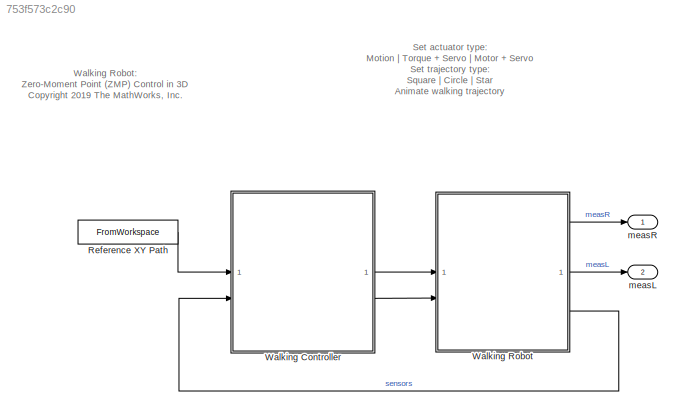
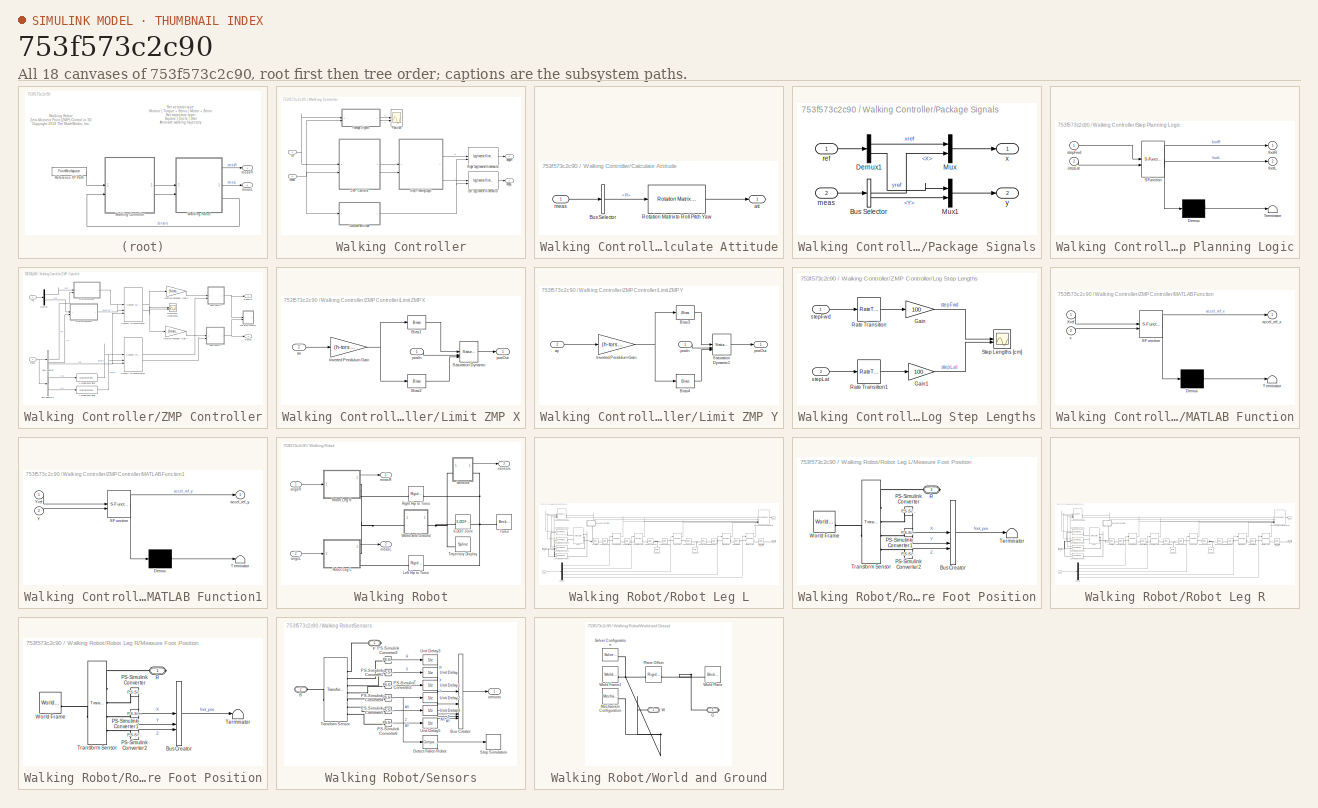
[diagram: thumbnail index - all 18 canvases of the model, root first then tree order]
MODEL slx_753f573c2c90
KIND model
CONFIG AbsTol = auto
CONFIG EnableMultiTasking = on
CONFIG FixedStep = auto
CONFIG MaxStep = auto
CONFIG MinStep = auto
CONFIG PreLoadFcn = robotParameters3D\n
CONFIG RelTol = 1e-2
CONFIG SampleTimeConstraint = Unconstrained
CONFIG SolverName = ode15s
CONFIG StartTime = 0.0
CONFIG StopTime = 70
BLOCK [FromWorkspace] Reference XY Path
  OutputAfterFinalValue = Holding final value
  SampleTime = TsCtrl
  VariableName = [pathT,pathX,pathY]
BLOCK [SubSystem] Walking Controller
BLOCK [SubSystem] Walking Controller/Calculate Attitude
BLOCK [BusSelector] Walking Controller/Calculate Attitude/Bus Selector
  OutputSignals = R
BLOCK [Reference] Walking Controller/Calculate Attitude/Rotation Matrix to Roll Pitch Yaw  REF=walkingRobotUtils/Rotation Matrix to 
Roll Pitch Yaw
  SourceBlock = walkingRobotUtils/Rotation Matrix to \nRoll Pitch Yaw
  SourceType = SubSystem
BLOCK [Outport] Walking Controller/Calculate Attitude/att
  VectorParamsAs1DForOutWhenUnconnected = off
BLOCK [Inport] Walking Controller/Calculate Attitude/meas
BLOCK [Reference] Walking Controller/Left Leg Inverse Kinematics  REF=walkingRobotUtils/Leg Inverse Kinematics
  SourceBlock = walkingRobotUtils/Leg Inverse Kinematics
  SourceType = SubSystem
BLOCK [SubSystem] Walking Controller/Package Signals
BLOCK [BusSelector] Walking Controller/Package Signals/Bus Selector
  OutputSignals = X,Y
BLOCK [Demux] Walking Controller/Package Signals/Demux1
  Outputs = 2
BLOCK [Mux] Walking Controller/Package Signals/Mux
  DisplayOption = bar
  Inputs = 2
BLOCK [Mux] Walking Controller/Package Signals/Mux1
  DisplayOption = bar
  Inputs = 2
BLOCK [Inport] Walking Controller/Package Signals/meas
  Port = 2
BLOCK [Inport] Walking Controller/Package Signals/ref
BLOCK [Outport] Walking Controller/Package Signals/x
  VectorParamsAs1DForOutWhenUnconnected = off
BLOCK [Outport] Walking Controller/Package Signals/y
  Port = 2
  VectorParamsAs1DForOutWhenUnconnected = off
BLOCK [Scope] Walking Controller/Position
  Floating = off
  NumInputPorts = 2
  ScopeSpecificationString = Simulink.scopes.TimeScopeBlockCfg('CurrentConfiguration', extmgr.ConfigurationSet(extmgr.Configuration('Core','General UI',true),extmgr.Configuration('Core','Source UI',true),extmgr.Configuration('Sources','WiredSimulink',true,'DataLoggingVariableName','ScopeData1'),extmgr.Configuration('Visuals','Time Domain',true,'SerializedDisplays',{struct('MinYLimReal','-0.12852','MaxYLimReal','1.15665','YLab...<+2143ch>
BLOCK [Reference] Walking Controller/Right Leg Inverse Kinematics  REF=walkingRobotUtils/Leg Inverse Kinematics
  SourceBlock = walkingRobotUtils/Leg Inverse Kinematics
  SourceType = SubSystem
BLOCK [SubSystem] Walking Controller/Step Planning Logic
  ErrorFcn = Stateflow.Translate.translate
  PermitHierarchicalResolution = ExplicitOnly
  SFBlockType = Chart
  TreatAsAtomicUnit = on
BLOCK [Demux] Walking Controller/Step Planning Logic/ Demux 
  Outputs = 1
BLOCK [S-Function] Walking Controller/Step Planning Logic/ SFunction 
  EnableBusSupport = on
  FunctionName = sf_sfun
  Parameters = Kwalk,h,stepHeight,tWalk
  PortCounts = [2 3]
  SFcnIsStateOwnerBlock = off
  SFunctionDeploymentMode = off
  Tag = Stateflow S-Function 4
BLOCK [Terminator] Walking Controller/Step Planning Logic/ Terminator 
BLOCK [Outport] Walking Controller/Step Planning Logic/footL
  Port = 2
  VectorParamsAs1DForOutWhenUnconnected = off
BLOCK [Outport] Walking Controller/Step Planning Logic/footR
  VectorParamsAs1DForOutWhenUnconnected = off
BLOCK [Inport] Walking Controller/Step Planning Logic/stepFwd
BLOCK [Inport] Walking Controller/Step Planning Logic/stepLat
  Port = 2
BLOCK [SubSystem] Walking Controller/ZMP Controller
BLOCK [BusSelector] Walking Controller/ZMP Controller/Bus Selector
  OutputSignals = X,Y,R
BLOCK [BusSelector] Walking Controller/ZMP Controller/Bus Selector1
  OutputSignals = AX,AY
BLOCK [Reference] Walking Controller/ZMP Controller/Convert to Local Frame  REF=walkingRobotUtils/Convert to Local Frame
  SourceBlock = walkingRobotUtils/Convert to Local Frame
  SourceType = SubSystem
BLOCK [Reference] Walking Controller/ZMP Controller/Convert to Local Frame1  REF=walkingRobotUtils/Convert to Local Frame
  SourceBlock = walkingRobotUtils/Convert to Local Frame
  SourceType = SubSystem
BLOCK [Demux] Walking Controller/ZMP Controller/Demux
  Outputs = 2
BLOCK [Gain] Walking Controller/ZMP Controller/Inverted Pendulum Gain X
  Gain = (h-torso_offset_z)/(g*100)
BLOCK [Gain] Walking Controller/ZMP Controller/Inverted Pendulum Gain Y
  Gain = (h-torso_offset_z)/(g*100)
BLOCK [SubSystem] Walking Controller/ZMP Controller/Limit ZMP X
BLOCK [Bias] Walking Controller/ZMP Controller/Limit ZMP X/Bias1
  Bias = 0.9*(foot_x/2)/100
  SaturateOnIntegerOverflow = off
BLOCK [Bias] Walking Controller/ZMP Controller/Limit ZMP X/Bias2
  Bias = -0.9*(foot_x/2)/100
  SaturateOnIntegerOverflow = off
BLOCK [Gain] Walking Controller/ZMP Controller/Limit ZMP X/Inverted Pendulum Gain
  Gain = (h-torso_offset_z)/(g*100)
BLOCK [Reference] Walking Controller/ZMP Controller/Limit ZMP X/Saturation Dynamic  REF=simulink/Discontinuities/Saturation
Dynamic
  SourceBlock = simulink/Discontinuities/Saturation\nDynamic
  SourceType = Saturation Dynamic
BLOCK [Inport] Walking Controller/ZMP Controller/Limit ZMP X/ax
  Port = 2
BLOCK [Inport] Walking Controller/ZMP Controller/Limit ZMP X/posIn
BLOCK [Outport] Walking Controller/ZMP Controller/Limit ZMP X/posOut
  VectorParamsAs1DForOutWhenUnconnected = off
BLOCK [SubSystem] Walking Controller/ZMP Controller/Limit ZMP Y
BLOCK [Bias] Walking Controller/ZMP Controller/Limit ZMP Y/Bias3
  Bias = 0.9*(foot_y/2)/100
  SaturateOnIntegerOverflow = off
BLOCK [Bias] Walking Controller/ZMP Controller/Limit ZMP Y/Bias4
  Bias = -0.9*(foot_y/2)/100
  SaturateOnIntegerOverflow = off
BLOCK [Gain] Walking Controller/ZMP Controller/Limit ZMP Y/Inverted Pendulum Gain
  Gain = (h-torso_offset_z)/(g*100)
BLOCK [Reference] Walking Controller/ZMP Controller/Limit ZMP Y/Saturation Dynamic1  REF=simulink/Discontinuities/Saturation
Dynamic
  SourceBlock = simulink/Discontinuities/Saturation\nDynamic
  SourceType = Saturation Dynamic
BLOCK [Inport] Walking Controller/ZMP Controller/Limit ZMP Y/ay
  Port = 2
BLOCK [Inport] Walking Controller/ZMP Controller/Limit ZMP Y/posIn
BLOCK [Outport] Walking Controller/ZMP Controller/Limit ZMP Y/posOut
  VectorParamsAs1DForOutWhenUnconnected = off
BLOCK [SubSystem] Walking Controller/ZMP Controller/Log Step Lengths
BLOCK [Gain] Walking Controller/ZMP Controller/Log Step Lengths/Gain
  Gain = 100
BLOCK [Gain] Walking Controller/ZMP Controller/Log Step Lengths/Gain1
  Gain = 100
  NameLocation = top
BLOCK [RateTransition] Walking Controller/ZMP Controller/Log Step Lengths/Rate Transition
  OutPortSampleTime = tWalk
BLOCK [RateTransition] Walking Controller/ZMP Controller/Log Step Lengths/Rate Transition1
  OutPortSampleTime = tWalk
BLOCK [Scope] Walking Controller/ZMP Controller/Log Step Lengths/Step Lengths [cm]
  Floating = off
  NumInputPorts = 2
  ScopeSpecificationString = Simulink.scopes.TimeScopeBlockCfg('CurrentConfiguration', extmgr.ConfigurationSet(extmgr.Configuration('Core','General UI',true),extmgr.Configuration('Core','Source UI',true),extmgr.Configuration('Sources','WiredSimulink',true,'DataLoggingVariableName','ScopeData2'),extmgr.Configuration('Visuals','Time Domain',true,'SerializedDisplays',{struct('MinYLimReal','-0.18147','MaxYLimReal','1.48184','YLab...<+2066ch>
BLOCK [Inport] Walking Controller/ZMP Controller/Log Step Lengths/stepFwd
BLOCK [Inport] Walking Controller/ZMP Controller/Log Step Lengths/stepLat
  Port = 2
BLOCK [SubSystem] Walking Controller/ZMP Controller/MATLAB Function
  ErrorFcn = Stateflow.Translate.translate
  PermitHierarchicalResolution = ExplicitOnly
  SFBlockType = MATLAB Function
  TreatAsAtomicUnit = on
BLOCK [Demux] Walking Controller/ZMP Controller/MATLAB Function/ Demux 
  Outputs = 1
BLOCK [S-Function] Walking Controller/ZMP Controller/MATLAB Function/ SFunction 
  EnableBusSupport = on
  FunctionName = sf_sfun
  PortCounts = [2 2]
  SFcnIsStateOwnerBlock = off
  SFunctionDeploymentMode = off
  Tag = Stateflow S-Function 2
BLOCK [Terminator] Walking Controller/ZMP Controller/MATLAB Function/ Terminator 
BLOCK [Inport] Walking Controller/ZMP Controller/MATLAB Function/Xref
BLOCK [Outport] Walking Controller/ZMP Controller/MATLAB Function/accel_ref_x
BLOCK [Inport] Walking Controller/ZMP Controller/MATLAB Function/x
  Port = 2
BLOCK [SubSystem] Walking Controller/ZMP Controller/MATLAB Function1
  ErrorFcn = Stateflow.Translate.translate
  PermitHierarchicalResolution = ExplicitOnly
  SFBlockType = MATLAB Function
  TreatAsAtomicUnit = on
BLOCK [Demux] Walking Controller/ZMP Controller/MATLAB Function1/ Demux 
  Outputs = 1
BLOCK [S-Function] Walking Controller/ZMP Controller/MATLAB Function1/ SFunction 
  EnableBusSupport = on
  FunctionName = sf_sfun
  PortCounts = [2 2]
  SFcnIsStateOwnerBlock = off
  SFunctionDeploymentMode = off
  Tag = Stateflow S-Function 1
BLOCK [Terminator] Walking Controller/ZMP Controller/MATLAB Function1/ Terminator 
BLOCK [Inport] Walking Controller/ZMP Controller/MATLAB Function1/Yref
BLOCK [Outport] Walking Controller/ZMP Controller/MATLAB Function1/accel_ref_y
BLOCK [Inport] Walking Controller/ZMP Controller/MATLAB Function1/y
  Port = 2
BLOCK [Scope] Walking Controller/ZMP Controller/Reference Accelerations
  Floating = off
  NumInputPorts = 2
  ScopeSpecificationString = Simulink.scopes.TimeScopeBlockCfg('CurrentConfiguration', extmgr.ConfigurationSet(extmgr.Configuration('Core','General UI',true),extmgr.Configuration('Core','Source UI',true),extmgr.Configuration('Sources','WiredSimulink',true,'DataLoggingVariableName','ScopeData1'),extmgr.Configuration('Visuals','Time Domain',true,'SerializedDisplays',{struct('MinYLimReal','-0.11241','MaxYLimReal','0.86744','YLab...<+2100ch>
BLOCK [DiscreteTransferFcn] Walking Controller/ZMP Controller/X Acceleration Filter
  Denominator = [1 -0.9753]
  InputPortMap = u0
  Numerator = [-1*0.02469]
BLOCK [DiscreteTransferFcn] Walking Controller/ZMP Controller/Y Acceleration Filter
  Denominator = [1 -0.9753]
  InputPortMap = u0
  Numerator = [-1*0.02469]
BLOCK [Inport] Walking Controller/ZMP Controller/meas 
  Port = 2
BLOCK [Inport] Walking Controller/ZMP Controller/ref
BLOCK [Outport] Walking Controller/ZMP Controller/stepFwd
  VectorParamsAs1DForOutWhenUnconnected = off
BLOCK [Outport] Walking Controller/ZMP Controller/stepLat
  Port = 2
  VectorParamsAs1DForOutWhenUnconnected = off
BLOCK [Outport] Walking Controller/angsL
  Port = 2
  VectorParamsAs1DForOutWhenUnconnected = off
BLOCK [Outport] Walking Controller/angsR
  VectorParamsAs1DForOutWhenUnconnected = off
BLOCK [Inport] Walking Controller/meas
  Port = 2
BLOCK [Inport] Walking Controller/ref
BLOCK [SubSystem] Walking Robot
BLOCK [Reference] Walking Robot/6-DOF Joint  REF=sm_lib/Joints/6-DOF Joint
  SourceBlock = sm_lib/Joints/6-DOF Joint
  SourceType = 6-DOF Joint
BLOCK [Reference] Walking Robot/Left Hip to Torso  REF=sm_lib/Frames and
Transforms/Rigid
Transform
  SourceBlock = sm_lib/Frames and\nTransforms/Rigid\nTransform
  SourceType = Rigid\nTransform
BLOCK [Reference] Walking Robot/Right Hip to Torso  REF=sm_lib/Frames and
Transforms/Rigid
Transform
  SourceBlock = sm_lib/Frames and\nTransforms/Rigid\nTransform
  SourceType = Rigid\nTransform
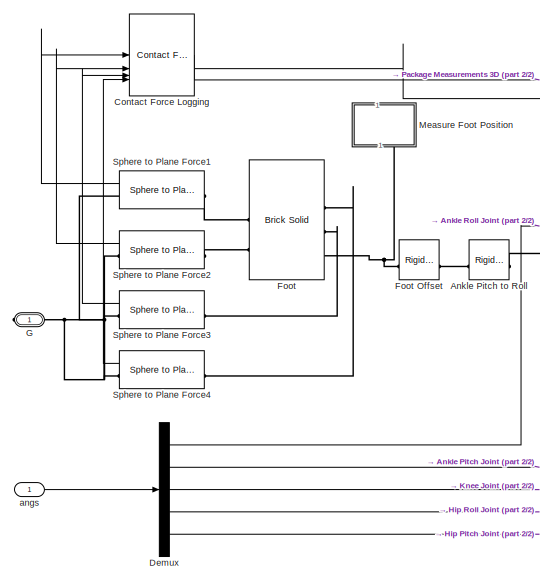
[diagram: Walking Robot/Robot Leg L - part 1/2, left side, full height]
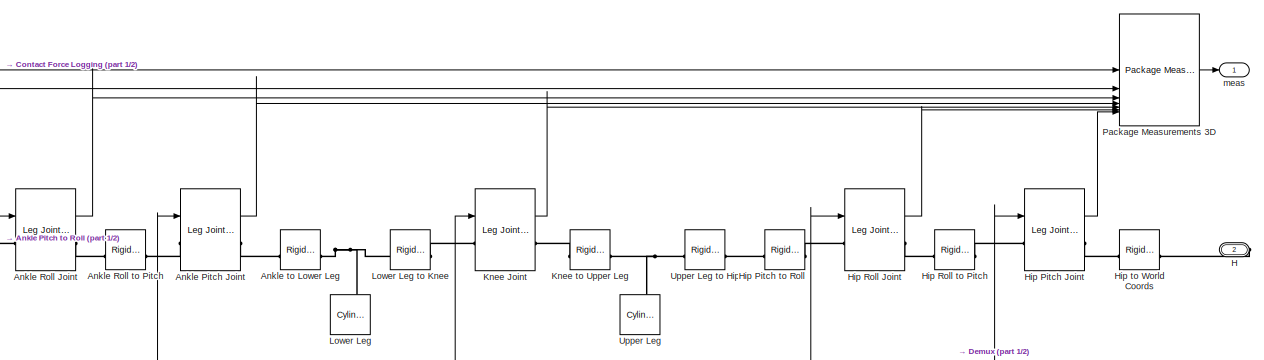
[diagram: Walking Robot/Robot Leg L - part 2/2, central region]
BLOCK [SubSystem] Walking Robot/Robot Leg L
BLOCK [Reference] Walking Robot/Robot Leg L/Ankle Pitch Joint  REF=walkingRobotUtils/Leg Joint Actuator
  SourceBlock = walkingRobotUtils/Leg Joint Actuator
  SourceType = Leg Joint Actuator
BLOCK [Reference] Walking Robot/Robot Leg L/Ankle Pitch to Roll  REF=sm_lib/Frames and
Transforms/Rigid
Transform
  SourceBlock = sm_lib/Frames and\nTransforms/Rigid\nTransform
  SourceType = Rigid\nTransform
BLOCK [Reference] Walking Robot/Robot Leg L/Ankle Roll Joint  REF=walkingRobotUtils/Leg Joint Actuator
  SourceBlock = walkingRobotUtils/Leg Joint Actuator
  SourceType = Leg Joint Actuator
BLOCK [Reference] Walking Robot/Robot Leg L/Ankle Roll to Pitch  REF=sm_lib/Frames and
Transforms/Rigid
Transform
  SourceBlock = sm_lib/Frames and\nTransforms/Rigid\nTransform
  SourceType = Rigid\nTransform
BLOCK [Reference] Walking Robot/Robot Leg L/Ankle to Lower Leg  REF=sm_lib/Frames and
Transforms/Rigid
Transform
  SourceBlock = sm_lib/Frames and\nTransforms/Rigid\nTransform
  SourceType = Rigid\nTransform
BLOCK [Reference] Walking Robot/Robot Leg L/Contact Force Logging  REF=walkingRobotUtils/Contact Force Logging
  SourceBlock = walkingRobotUtils/Contact Force Logging
  SourceType = SubSystem
BLOCK [Demux] Walking Robot/Robot Leg L/Demux
  Outputs = 5
BLOCK [Reference] Walking Robot/Robot Leg L/Foot  REF=sm_lib/Body Elements/Brick Solid
  SourceBlock = sm_lib/Body Elements/Brick Solid
  SourceType = Brick Solid
BLOCK [Reference] Walking Robot/Robot Leg L/Foot Offset  REF=sm_lib/Frames and
Transforms/Rigid
Transform
  SourceBlock = sm_lib/Frames and\nTransforms/Rigid\nTransform
  SourceType = Rigid\nTransform
BLOCK [PMIOPort] Walking Robot/Robot Leg L/G
  Side = Right
BLOCK [PMIOPort] Walking Robot/Robot Leg L/H
  Port = 2
  Side = Right
BLOCK [Reference] Walking Robot/Robot Leg L/Hip Pitch Joint  REF=walkingRobotUtils/Leg Joint Actuator
  SourceBlock = walkingRobotUtils/Leg Joint Actuator
  SourceType = Leg Joint Actuator
BLOCK [Reference] Walking Robot/Robot Leg L/Hip Pitch to Roll  REF=sm_lib/Frames and
Transforms/Rigid
Transform
  SourceBlock = sm_lib/Frames and\nTransforms/Rigid\nTransform
  SourceType = Rigid\nTransform
BLOCK [Reference] Walking Robot/Robot Leg L/Hip Roll Joint  REF=walkingRobotUtils/Leg Joint Actuator
  SourceBlock = walkingRobotUtils/Leg Joint Actuator
  SourceType = Leg Joint Actuator
BLOCK [Reference] Walking Robot/Robot Leg L/Hip Roll to Pitch  REF=sm_lib/Frames and
Transforms/Rigid
Transform
  SourceBlock = sm_lib/Frames and\nTransforms/Rigid\nTransform
  SourceType = Rigid\nTransform
BLOCK [Reference] Walking Robot/Robot Leg L/Hip to World Coords  REF=sm_lib/Frames and
Transforms/Rigid
Transform
  SourceBlock = sm_lib/Frames and\nTransforms/Rigid\nTransform
  SourceType = Rigid\nTransform
BLOCK [Reference] Walking Robot/Robot Leg L/Knee Joint  REF=walkingRobotUtils/Leg Joint Actuator
  SourceBlock = walkingRobotUtils/Leg Joint Actuator
  SourceType = Leg Joint Actuator
BLOCK [Reference] Walking Robot/Robot Leg L/Knee to Upper Leg  REF=sm_lib/Frames and
Transforms/Rigid
Transform
  SourceBlock = sm_lib/Frames and\nTransforms/Rigid\nTransform
  SourceType = Rigid\nTransform
BLOCK [Reference] Walking Robot/Robot Leg L/Lower Leg  REF=sm_lib/Body Elements/Cylindrical Solid
  NameLocation = right
  SourceBlock = sm_lib/Body Elements/Cylindrical Solid
  SourceType = Cylindrical Solid
BLOCK [Reference] Walking Robot/Robot Leg L/Lower Leg to Knee  REF=sm_lib/Frames and
Transforms/Rigid
Transform
  SourceBlock = sm_lib/Frames and\nTransforms/Rigid\nTransform
  SourceType = Rigid\nTransform
BLOCK [SubSystem] Walking Robot/Robot Leg L/Measure Foot Position
  NameLocation = right
BLOCK [BusCreator] Walking Robot/Robot Leg L/Measure Foot Position/Bus Creator
  DisplayOption = bar
  InheritFromInputs = on
  Inputs = 3
BLOCK [Reference] Walking Robot/Robot Leg L/Measure Foot Position/PS-Simulink Converter  REF=nesl_utility/PS-Simulink
Converter
  SourceBlock = nesl_utility/PS-Simulink\nConverter
  SourceType = PS-Simulink\nConverter
BLOCK [Reference] Walking Robot/Robot Leg L/Measure Foot Position/PS-Simulink Converter1  REF=nesl_utility/PS-Simulink
Converter
  SourceBlock = nesl_utility/PS-Simulink\nConverter
  SourceType = PS-Simulink\nConverter
BLOCK [Reference] Walking Robot/Robot Leg L/Measure Foot Position/PS-Simulink Converter2  REF=nesl_utility/PS-Simulink
Converter
  SourceBlock = nesl_utility/PS-Simulink\nConverter
  SourceType = PS-Simulink\nConverter
BLOCK [PMIOPort] Walking Robot/Robot Leg L/Measure Foot Position/R
  Side = Right
BLOCK [Terminator] Walking Robot/Robot Leg L/Measure Foot Position/Terminator
BLOCK [Reference] Walking Robot/Robot Leg L/Measure Foot Position/Transform Sensor  REF=sm_lib/Frames and
Transforms/Transform
Sensor
  NameLocation = top
  SourceBlock = sm_lib/Frames and\nTransforms/Transform\nSensor
  SourceType = Transform\nSensor
BLOCK [Reference] Walking Robot/Robot Leg L/Measure Foot Position/World Frame  REF=sm_lib/Frames and
Transforms/World Frame
  SourceBlock = sm_lib/Frames and\nTransforms/World Frame
  SourceType = World Frame
BLOCK [Reference] Walking Robot/Robot Leg L/Package Measurements 3D  REF=walkingRobotUtils/Package
Measurements 3D
  SourceBlock = walkingRobotUtils/Package\nMeasurements 3D
  SourceType = SubSystem
BLOCK [Reference] Walking Robot/Robot Leg L/Sphere to Plane Force1  REF=Contact_Forces_Lib/3D/Sphere to Plane Force
  SourceBlock = Contact_Forces_Lib/3D/Sphere to Plane Force
  SourceProductName = Simscape Multibody Contact Forces Library
  SourceType = Sphere to Plane Force
BLOCK [Reference] Walking Robot/Robot Leg L/Sphere to Plane Force2  REF=Contact_Forces_Lib/3D/Sphere to Plane Force
  SourceBlock = Contact_Forces_Lib/3D/Sphere to Plane Force
  SourceProductName = Simscape Multibody Contact Forces Library
  SourceType = Sphere to Plane Force
BLOCK [Reference] Walking Robot/Robot Leg L/Sphere to Plane Force3  REF=Contact_Forces_Lib/3D/Sphere to Plane Force
  SourceBlock = Contact_Forces_Lib/3D/Sphere to Plane Force
  SourceProductName = Simscape Multibody Contact Forces Library
  SourceType = Sphere to Plane Force
BLOCK [Reference] Walking Robot/Robot Leg L/Sphere to Plane Force4  REF=Contact_Forces_Lib/3D/Sphere to Plane Force
  SourceBlock = Contact_Forces_Lib/3D/Sphere to Plane Force
  SourceProductName = Simscape Multibody Contact Forces Library
  SourceType = Sphere to Plane Force
BLOCK [Reference] Walking Robot/Robot Leg L/Upper Leg  REF=sm_lib/Body Elements/Cylindrical Solid
  NameLocation = right
  SourceBlock = sm_lib/Body Elements/Cylindrical Solid
  SourceType = Cylindrical Solid
BLOCK [Reference] Walking Robot/Robot Leg L/Upper Leg to Hip  REF=sm_lib/Frames and
Transforms/Rigid
Transform
  SourceBlock = sm_lib/Frames and\nTransforms/Rigid\nTransform
  SourceType = Rigid\nTransform
BLOCK [Inport] Walking Robot/Robot Leg L/angs
BLOCK [Outport] Walking Robot/Robot Leg L/meas
  VectorParamsAs1DForOutWhenUnconnected = off
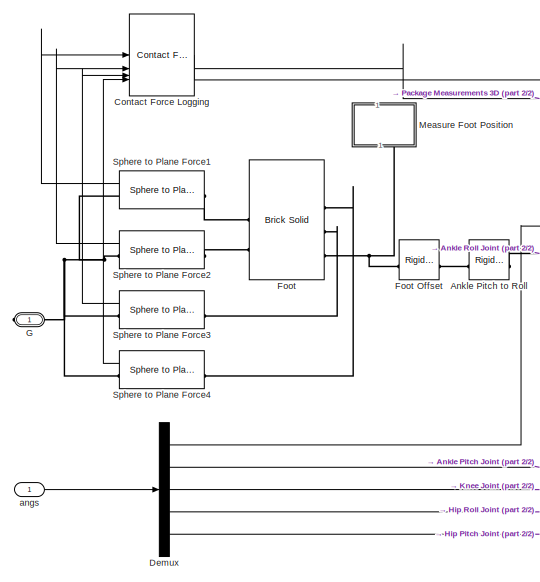
[diagram: Walking Robot/Robot Leg R - part 1/2, left side, full height]
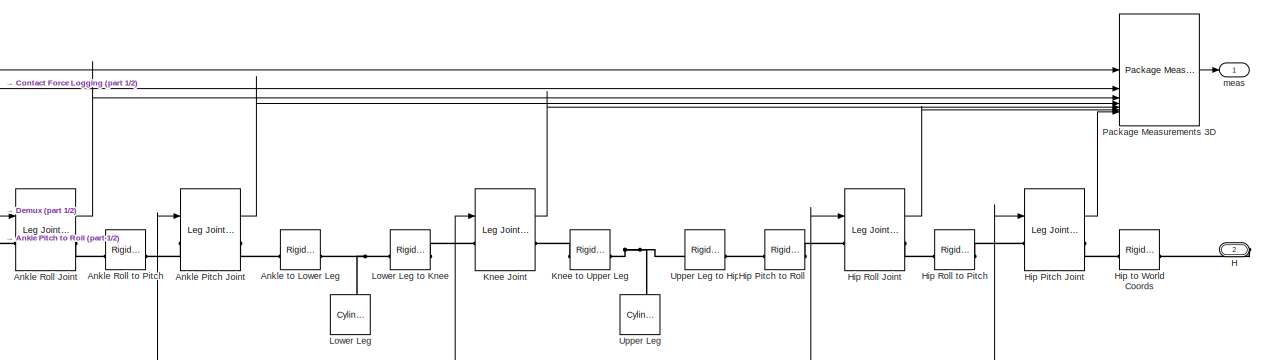
[diagram: Walking Robot/Robot Leg R - part 2/2, central region]
BLOCK [SubSystem] Walking Robot/Robot Leg R
BLOCK [Reference] Walking Robot/Robot Leg R/Ankle Pitch Joint  REF=walkingRobotUtils/Leg Joint Actuator
  SourceBlock = walkingRobotUtils/Leg Joint Actuator
  SourceType = Leg Joint Actuator
BLOCK [Reference] Walking Robot/Robot Leg R/Ankle Pitch to Roll  REF=sm_lib/Frames and
Transforms/Rigid
Transform
  SourceBlock = sm_lib/Frames and\nTransforms/Rigid\nTransform
  SourceType = Rigid\nTransform
BLOCK [Reference] Walking Robot/Robot Leg R/Ankle Roll Joint  REF=walkingRobotUtils/Leg Joint Actuator
  SourceBlock = walkingRobotUtils/Leg Joint Actuator
  SourceType = Leg Joint Actuator
BLOCK [Reference] Walking Robot/Robot Leg R/Ankle Roll to Pitch  REF=sm_lib/Frames and
Transforms/Rigid
Transform
  SourceBlock = sm_lib/Frames and\nTransforms/Rigid\nTransform
  SourceType = Rigid\nTransform
BLOCK [Reference] Walking Robot/Robot Leg R/Ankle to Lower Leg  REF=sm_lib/Frames and
Transforms/Rigid
Transform
  SourceBlock = sm_lib/Frames and\nTransforms/Rigid\nTransform
  SourceType = Rigid\nTransform
BLOCK [Reference] Walking Robot/Robot Leg R/Contact Force Logging  REF=walkingRobotUtils/Contact Force Logging
  SourceBlock = walkingRobotUtils/Contact Force Logging
  SourceType = SubSystem
BLOCK [Demux] Walking Robot/Robot Leg R/Demux
  Outputs = 5
BLOCK [Reference] Walking Robot/Robot Leg R/Foot  REF=sm_lib/Body Elements/Brick Solid
  SourceBlock = sm_lib/Body Elements/Brick Solid
  SourceType = Brick Solid
BLOCK [Reference] Walking Robot/Robot Leg R/Foot Offset  REF=sm_lib/Frames and
Transforms/Rigid
Transform
  SourceBlock = sm_lib/Frames and\nTransforms/Rigid\nTransform
  SourceType = Rigid\nTransform
BLOCK [PMIOPort] Walking Robot/Robot Leg R/G
  Side = Right
BLOCK [PMIOPort] Walking Robot/Robot Leg R/H
  Port = 2
  Side = Right
BLOCK [Reference] Walking Robot/Robot Leg R/Hip Pitch Joint  REF=walkingRobotUtils/Leg Joint Actuator
  SourceBlock = walkingRobotUtils/Leg Joint Actuator
  SourceType = Leg Joint Actuator
BLOCK [Reference] Walking Robot/Robot Leg R/Hip Pitch to Roll  REF=sm_lib/Frames and
Transforms/Rigid
Transform
  SourceBlock = sm_lib/Frames and\nTransforms/Rigid\nTransform
  SourceType = Rigid\nTransform
BLOCK [Reference] Walking Robot/Robot Leg R/Hip Roll Joint  REF=walkingRobotUtils/Leg Joint Actuator
  SourceBlock = walkingRobotUtils/Leg Joint Actuator
  SourceType = Leg Joint Actuator
BLOCK [Reference] Walking Robot/Robot Leg R/Hip Roll to Pitch  REF=sm_lib/Frames and
Transforms/Rigid
Transform
  SourceBlock = sm_lib/Frames and\nTransforms/Rigid\nTransform
  SourceType = Rigid\nTransform
BLOCK [Reference] Walking Robot/Robot Leg R/Hip to World Coords  REF=sm_lib/Frames and
Transforms/Rigid
Transform
  SourceBlock = sm_lib/Frames and\nTransforms/Rigid\nTransform
  SourceType = Rigid\nTransform
BLOCK [Reference] Walking Robot/Robot Leg R/Knee Joint  REF=walkingRobotUtils/Leg Joint Actuator
  SourceBlock = walkingRobotUtils/Leg Joint Actuator
  SourceType = Leg Joint Actuator
BLOCK [Reference] Walking Robot/Robot Leg R/Knee to Upper Leg  REF=sm_lib/Frames and
Transforms/Rigid
Transform
  SourceBlock = sm_lib/Frames and\nTransforms/Rigid\nTransform
  SourceType = Rigid\nTransform
BLOCK [Reference] Walking Robot/Robot Leg R/Lower Leg  REF=sm_lib/Body Elements/Cylindrical Solid
  NameLocation = right
  SourceBlock = sm_lib/Body Elements/Cylindrical Solid
  SourceType = Cylindrical Solid
BLOCK [Reference] Walking Robot/Robot Leg R/Lower Leg to Knee  REF=sm_lib/Frames and
Transforms/Rigid
Transform
  SourceBlock = sm_lib/Frames and\nTransforms/Rigid\nTransform
  SourceType = Rigid\nTransform
BLOCK [SubSystem] Walking Robot/Robot Leg R/Measure Foot Position
  NameLocation = right
BLOCK [BusCreator] Walking Robot/Robot Leg R/Measure Foot Position/Bus Creator
  DisplayOption = bar
  InheritFromInputs = on
  Inputs = 3
BLOCK [Reference] Walking Robot/Robot Leg R/Measure Foot Position/PS-Simulink Converter  REF=nesl_utility/PS-Simulink
Converter
  SourceBlock = nesl_utility/PS-Simulink\nConverter
  SourceType = PS-Simulink\nConverter
BLOCK [Reference] Walking Robot/Robot Leg R/Measure Foot Position/PS-Simulink Converter1  REF=nesl_utility/PS-Simulink
Converter
  SourceBlock = nesl_utility/PS-Simulink\nConverter
  SourceType = PS-Simulink\nConverter
BLOCK [Reference] Walking Robot/Robot Leg R/Measure Foot Position/PS-Simulink Converter2  REF=nesl_utility/PS-Simulink
Converter
  SourceBlock = nesl_utility/PS-Simulink\nConverter
  SourceType = PS-Simulink\nConverter
BLOCK [PMIOPort] Walking Robot/Robot Leg R/Measure Foot Position/R
  Side = Right
BLOCK [Terminator] Walking Robot/Robot Leg R/Measure Foot Position/Terminator
BLOCK [Reference] Walking Robot/Robot Leg R/Measure Foot Position/Transform Sensor  REF=sm_lib/Frames and
Transforms/Transform
Sensor
  NameLocation = top
  SourceBlock = sm_lib/Frames and\nTransforms/Transform\nSensor
  SourceType = Transform\nSensor
BLOCK [Reference] Walking Robot/Robot Leg R/Measure Foot Position/World Frame  REF=sm_lib/Frames and
Transforms/World Frame
  SourceBlock = sm_lib/Frames and\nTransforms/World Frame
  SourceType = World Frame
BLOCK [Reference] Walking Robot/Robot Leg R/Package Measurements 3D  REF=walkingRobotUtils/Package
Measurements 3D
  SourceBlock = walkingRobotUtils/Package\nMeasurements 3D
  SourceType = SubSystem
BLOCK [Reference] Walking Robot/Robot Leg R/Sphere to Plane Force1  REF=Contact_Forces_Lib/3D/Sphere to Plane Force
  SourceBlock = Contact_Forces_Lib/3D/Sphere to Plane Force
  SourceProductName = Simscape Multibody Contact Forces Library
  SourceType = Sphere to Plane Force
BLOCK [Reference] Walking Robot/Robot Leg R/Sphere to Plane Force2  REF=Contact_Forces_Lib/3D/Sphere to Plane Force
  SourceBlock = Contact_Forces_Lib/3D/Sphere to Plane Force
  SourceProductName = Simscape Multibody Contact Forces Library
  SourceType = Sphere to Plane Force
BLOCK [Reference] Walking Robot/Robot Leg R/Sphere to Plane Force3  REF=Contact_Forces_Lib/3D/Sphere to Plane Force
  SourceBlock = Contact_Forces_Lib/3D/Sphere to Plane Force
  SourceProductName = Simscape Multibody Contact Forces Library
  SourceType = Sphere to Plane Force
BLOCK [Reference] Walking Robot/Robot Leg R/Sphere to Plane Force4  REF=Contact_Forces_Lib/3D/Sphere to Plane Force
  SourceBlock = Contact_Forces_Lib/3D/Sphere to Plane Force
  SourceProductName = Simscape Multibody Contact Forces Library
  SourceType = Sphere to Plane Force
BLOCK [Reference] Walking Robot/Robot Leg R/Upper Leg  REF=sm_lib/Body Elements/Cylindrical Solid
  NameLocation = right
  SourceBlock = sm_lib/Body Elements/Cylindrical Solid
  SourceType = Cylindrical Solid
BLOCK [Reference] Walking Robot/Robot Leg R/Upper Leg to Hip  REF=sm_lib/Frames and
Transforms/Rigid
Transform
  SourceBlock = sm_lib/Frames and\nTransforms/Rigid\nTransform
  SourceType = Rigid\nTransform
BLOCK [Inport] Walking Robot/Robot Leg R/angs
BLOCK [Outport] Walking Robot/Robot Leg R/meas
  VectorParamsAs1DForOutWhenUnconnected = off
BLOCK [SubSystem] Walking Robot/Sensors
BLOCK [PMIOPort] Walking Robot/Sensors/B
  Port = 2
  Side = Left
BLOCK [BusCreator] Walking Robot/Sensors/Bus Creator
  DisplayOption = bar
  InheritFromInputs = on
  Inputs = 6
BLOCK [Reference] Walking Robot/Sensors/Detect Fallen Robot  REF=simulink/Logic and Bit
Operations/Compare
To Constant
  SourceBlock = simulink/Logic and Bit\nOperations/Compare\nTo Constant
  SourceType = Compare To Constant
BLOCK [PMIOPort] Walking Robot/Sensors/F
  Side = Right
BLOCK [Reference] Walking Robot/Sensors/PS-Simulink Converter1  REF=nesl_utility/PS-Simulink
Converter
  SourceBlock = nesl_utility/PS-Simulink\nConverter
  SourceType = PS-Simulink\nConverter
BLOCK [Reference] Walking Robot/Sensors/PS-Simulink Converter2  REF=nesl_utility/PS-Simulink
Converter
  SourceBlock = nesl_utility/PS-Simulink\nConverter
  SourceType = PS-Simulink\nConverter
BLOCK [Reference] Walking Robot/Sensors/PS-Simulink Converter3  REF=nesl_utility/PS-Simulink
Converter
  SourceBlock = nesl_utility/PS-Simulink\nConverter
  SourceType = PS-Simulink\nConverter
BLOCK [Reference] Walking Robot/Sensors/PS-Simulink Converter4  REF=nesl_utility/PS-Simulink
Converter
  SourceBlock = nesl_utility/PS-Simulink\nConverter
  SourceType = PS-Simulink\nConverter
BLOCK [Reference] Walking Robot/Sensors/PS-Simulink Converter5  REF=nesl_utility/PS-Simulink
Converter
  SourceBlock = nesl_utility/PS-Simulink\nConverter
  SourceType = PS-Simulink\nConverter
BLOCK [Reference] Walking Robot/Sensors/PS-Simulink Converter6  REF=nesl_utility/PS-Simulink
Converter
  SourceBlock = nesl_utility/PS-Simulink\nConverter
  SourceType = PS-Simulink\nConverter
BLOCK [Stop] Walking Robot/Sensors/Stop Simulation
BLOCK [Reference] Walking Robot/Sensors/Transform Sensor  REF=sm_lib/Frames and
Transforms/Transform
Sensor
  SourceBlock = sm_lib/Frames and\nTransforms/Transform\nSensor
  SourceType = Transform\nSensor
BLOCK [UnitDelay] Walking Robot/Sensors/Unit Delay
  HasFrameUpgradeWarning = on
  SampleTime = -1
BLOCK [UnitDelay] Walking Robot/Sensors/Unit Delay1
  HasFrameUpgradeWarning = on
  SampleTime = -1
BLOCK [UnitDelay] Walking Robot/Sensors/Unit Delay2
  HasFrameUpgradeWarning = on
  InitialCondition = init_height/100
  SampleTime = -1
BLOCK [UnitDelay] Walking Robot/Sensors/Unit Delay3
  HasFrameUpgradeWarning = on
  InitialCondition = eye(3)
  SampleTime = -1
BLOCK [UnitDelay] Walking Robot/Sensors/Unit Delay4
  HasFrameUpgradeWarning = on
  SampleTime = -1
BLOCK [UnitDelay] Walking Robot/Sensors/Unit Delay5
  HasFrameUpgradeWarning = on
  SampleTime = -1
BLOCK [Outport] Walking Robot/Sensors/sensors
  VectorParamsAs1DForOutWhenUnconnected = off
BLOCK [Reference] Walking Robot/Torso  REF=sm_lib/Body Elements/Brick Solid
  SourceBlock = sm_lib/Body Elements/Brick Solid
  SourceType = Brick Solid
BLOCK [Reference] Walking Robot/Trajectory Display  REF=sm_lib/Curves and Surfaces/Spline
  SourceBlock = sm_lib/Curves and Surfaces/Spline
  SourceType = Spline
BLOCK [SubSystem] Walking Robot/World and Ground
BLOCK [PMIOPort] Walking Robot/World and Ground/G
  Port = 2
  Side = Right
BLOCK [Reference] Walking Robot/World and Ground/Mechanism Configuration  REF=sm_lib/Utilities/Mechanism
Configuration
  SourceBlock = sm_lib/Utilities/Mechanism\nConfiguration
  SourceType = Mechanism\nConfiguration
BLOCK [Reference] Walking Robot/World and Ground/Plane Offset  REF=sm_lib/Frames and
Transforms/Rigid
Transform
  SourceBlock = sm_lib/Frames and\nTransforms/Rigid\nTransform
  SourceType = Rigid\nTransform
BLOCK [Reference] Walking Robot/World and Ground/Solver Configuration  REF=nesl_utility/Solver
Configuration
  SourceBlock = nesl_utility/Solver\nConfiguration
  SourceType = Solver\nConfiguration
BLOCK [PMIOPort] Walking Robot/World and Ground/W
  Side = Left
BLOCK [Reference] Walking Robot/World and Ground/World Frame1  REF=sm_lib/Frames and
Transforms/World Frame
  SourceBlock = sm_lib/Frames and\nTransforms/World Frame
  SourceType = World Frame
BLOCK [Reference] Walking Robot/World and Ground/World Plane  REF=sm_lib/Body Elements/Brick Solid
  SourceBlock = sm_lib/Body Elements/Brick Solid
  SourceType = Brick Solid
BLOCK [Inport] Walking Robot/angsL
  Port = 2
BLOCK [Inport] Walking Robot/angsR
BLOCK [Outport] Walking Robot/measL
  Port = 2
  VectorParamsAs1DForOutWhenUnconnected = off
BLOCK [Outport] Walking Robot/measR
  VectorParamsAs1DForOutWhenUnconnected = off
BLOCK [Outport] Walking Robot/sensors
  Port = 3
  VectorParamsAs1DForOutWhenUnconnected = off
BLOCK [Outport] measL
  Port = 2
  VectorParamsAs1DForOutWhenUnconnected = off
BLOCK [Outport] measR
  VectorParamsAs1DForOutWhenUnconnected = off
ANNOTATION (root): Set actuator type: Motion | Torque + Servo | Motor + Servo Set trajectory type: Square | Circle | Star Animate walking trajectory
ANNOTATION (root): Walking Robot: Zero-Moment Point (ZMP) Control in 3D <copyright redacted>
LINE Reference XY Path:1 -> Walking Controller:1
LINE Walking Controller/Calculate Attitude/Bus Selector:1 -> Walking Controller/Calculate Attitude/Rotation Matrix to Roll Pitch Yaw:1
LINE Walking Controller/Calculate Attitude/Rotation Matrix to Roll Pitch Yaw:1 -> Walking Controller/Calculate Attitude/att:1
LINE Walking Controller/Calculate Attitude/meas:1 -> Walking Controller/Calculate Attitude/Bus Selector:1
NET Walking Controller/Calculate Attitude:1 -> Walking Controller/Left Leg Inverse Kinematics:2, Walking Controller/Right Leg Inverse Kinematics:2
LINE Walking Controller/Left Leg Inverse Kinematics:1 -> Walking Controller/angsL:1
LINE Walking Controller/Package Signals/Bus Selector:1 -> Walking Controller/Package Signals/Mux:2
LINE Walking Controller/Package Signals/Bus Selector:2 -> Walking Controller/Package Signals/Mux1:2
LINE Walking Controller/Package Signals/Demux1:1 -> Walking Controller/Package Signals/Mux:1
LINE Walking Controller/Package Signals/Demux1:2 -> Walking Controller/Package Signals/Mux1:1
LINE Walking Controller/Package Signals/Mux1:1 -> Walking Controller/Package Signals/y:1
LINE Walking Controller/Package Signals/Mux:1 -> Walking Controller/Package Signals/x:1
LINE Walking Controller/Package Signals/meas:1 -> Walking Controller/Package Signals/Bus Selector:1
LINE Walking Controller/Package Signals/ref:1 -> Walking Controller/Package Signals/Demux1:1
LINE Walking Controller/Package Signals:1 -> Walking Controller/Position:1
LINE Walking Controller/Package Signals:2 -> Walking Controller/Position:2
LINE Walking Controller/Right Leg Inverse Kinematics:1 -> Walking Controller/angsR:1
LINE Walking Controller/Step Planning Logic:1 -> Walking Controller/Right Leg Inverse Kinematics:1
LINE Walking Controller/Step Planning Logic:2 -> Walking Controller/Left Leg Inverse Kinematics:1
LINE Walking Controller/ZMP Controller/Bus Selector1:1 -> Walking Controller/ZMP Controller/X Acceleration Filter:1
LINE Walking Controller/ZMP Controller/Bus Selector1:2 -> Walking Controller/ZMP Controller/Y Acceleration Filter:1
LINE Walking Controller/ZMP Controller/Bus Selector:1 -> Walking Controller/ZMP Controller/MATLAB Function:2
LINE Walking Controller/ZMP Controller/Bus Selector:2 -> Walking Controller/ZMP Controller/MATLAB Function1:2
NET Walking Controller/ZMP Controller/Bus Selector:3 -> Walking Controller/ZMP Controller/Convert to Local Frame1:3, Walking Controller/ZMP Controller/Convert to Local Frame:3
LINE Walking Controller/ZMP Controller/Convert to Local Frame1:1 -> Walking Controller/ZMP Controller/Limit ZMP X:2
LINE Walking Controller/ZMP Controller/Convert to Local Frame1:2 -> Walking Controller/ZMP Controller/Limit ZMP Y:2
NET Walking Controller/ZMP Controller/Convert to Local Frame:1 -> Walking Controller/ZMP Controller/Inverted Pendulum Gain X:1, Walking Controller/ZMP Controller/Reference Accelerations:1
NET Walking Controller/ZMP Controller/Convert to Local Frame:2 -> Walking Controller/ZMP Controller/Inverted Pendulum Gain Y:1, Walking Controller/ZMP Controller/Reference Accelerations:2
LINE Walking Controller/ZMP Controller/Demux:1 -> Walking Controller/ZMP Controller/MATLAB Function:1
LINE Walking Controller/ZMP Controller/Demux:2 -> Walking Controller/ZMP Controller/MATLAB Function1:1
LINE Walking Controller/ZMP Controller/Inverted Pendulum Gain X:1 -> Walking Controller/ZMP Controller/Limit ZMP X:1
LINE Walking Controller/ZMP Controller/Inverted Pendulum Gain Y:1 -> Walking Controller/ZMP Controller/Limit ZMP Y:1
LINE Walking Controller/ZMP Controller/Limit ZMP X/Bias1:1 -> Walking Controller/ZMP Controller/Limit ZMP X/Saturation Dynamic:1
LINE Walking Controller/ZMP Controller/Limit ZMP X/Bias2:1 -> Walking Controller/ZMP Controller/Limit ZMP X/Saturation Dynamic:3
NET Walking Controller/ZMP Controller/Limit ZMP X/Inverted Pendulum Gain:1 -> Walking Controller/ZMP Controller/Limit ZMP X/Bias1:1, Walking Controller/ZMP Controller/Limit ZMP X/Bias2:1
LINE Walking Controller/ZMP Controller/Limit ZMP X/Saturation Dynamic:1 -> Walking Controller/ZMP Controller/Limit ZMP X/posOut:1
LINE Walking Controller/ZMP Controller/Limit ZMP X/ax:1 -> Walking Controller/ZMP Controller/Limit ZMP X/Inverted Pendulum Gain:1
LINE Walking Controller/ZMP Controller/Limit ZMP X/posIn:1 -> Walking Controller/ZMP Controller/Limit ZMP X/Saturation Dynamic:2
NET Walking Controller/ZMP Controller/Limit ZMP X:1 -> Walking Controller/ZMP Controller/Log Step Lengths:1, Walking Controller/ZMP Controller/stepFwd:1
LINE Walking Controller/ZMP Controller/Limit ZMP Y/Bias3:1 -> Walking Controller/ZMP Controller/Limit ZMP Y/Saturation Dynamic1:1
LINE Walking Controller/ZMP Controller/Limit ZMP Y/Bias4:1 -> Walking Controller/ZMP Controller/Limit ZMP Y/Saturation Dynamic1:3
NET Walking Controller/ZMP Controller/Limit ZMP Y/Inverted Pendulum Gain:1 -> Walking Controller/ZMP Controller/Limit ZMP Y/Bias3:1, Walking Controller/ZMP Controller/Limit ZMP Y/Bias4:1
LINE Walking Controller/ZMP Controller/Limit ZMP Y/Saturation Dynamic1:1 -> Walking Controller/ZMP Controller/Limit ZMP Y/posOut:1
LINE Walking Controller/ZMP Controller/Limit ZMP Y/ay:1 -> Walking Controller/ZMP Controller/Limit ZMP Y/Inverted Pendulum Gain:1
LINE Walking Controller/ZMP Controller/Limit ZMP Y/posIn:1 -> Walking Controller/ZMP Controller/Limit ZMP Y/Saturation Dynamic1:2
NET Walking Controller/ZMP Controller/Limit ZMP Y:1 -> Walking Controller/ZMP Controller/Log Step Lengths:2, Walking Controller/ZMP Controller/stepLat:1
LINE Walking Controller/ZMP Controller/Log Step Lengths/Gain1:1 -> Walking Controller/ZMP Controller/Log Step Lengths/Step Lengths [cm]:2
LINE Walking Controller/ZMP Controller/Log Step Lengths/Gain:1 -> Walking Controller/ZMP Controller/Log Step Lengths/Step Lengths [cm]:1
LINE Walking Controller/ZMP Controller/Log Step Lengths/Rate Transition1:1 -> Walking Controller/ZMP Controller/Log Step Lengths/Gain1:1
LINE Walking Controller/ZMP Controller/Log Step Lengths/Rate Transition:1 -> Walking Controller/ZMP Controller/Log Step Lengths/Gain:1
LINE Walking Controller/ZMP Controller/Log Step Lengths/stepFwd:1 -> Walking Controller/ZMP Controller/Log Step Lengths/Rate Transition:1
LINE Walking Controller/ZMP Controller/Log Step Lengths/stepLat:1 -> Walking Controller/ZMP Controller/Log Step Lengths/Rate Transition1:1
LINE Walking Controller/ZMP Controller/MATLAB Function1:1 -> Walking Controller/ZMP Controller/Convert to Local Frame:2
LINE Walking Controller/ZMP Controller/MATLAB Function:1 -> Walking Controller/ZMP Controller/Convert to Local Frame:1
LINE Walking Controller/ZMP Controller/X Acceleration Filter:1 -> Walking Controller/ZMP Controller/Convert to Local Frame1:1
LINE Walking Controller/ZMP Controller/Y Acceleration Filter:1 -> Walking Controller/ZMP Controller/Convert to Local Frame1:2
NET Walking Controller/ZMP Controller/meas :1 -> Walking Controller/ZMP Controller/Bus Selector1:1, Walking Controller/ZMP Controller/Bus Selector:1
LINE Walking Controller/ZMP Controller/ref:1 -> Walking Controller/ZMP Controller/Demux:1
LINE Walking Controller/ZMP Controller:1 -> Walking Controller/Step Planning Logic:1
LINE Walking Controller/ZMP Controller:2 -> Walking Controller/Step Planning Logic:2
NET Walking Controller/meas:1 -> Walking Controller/Calculate Attitude:1, Walking Controller/Package Signals:2, Walking Controller/ZMP Controller:2
NET Walking Controller/ref:1 -> Walking Controller/Package Signals:1, Walking Controller/ZMP Controller:1
LINE Walking Controller:1 -> Walking Robot:1
LINE Walking Controller:2 -> Walking Robot:2
LINE Walking Robot/Robot Leg L/Ankle Pitch Joint:1 -> Walking Robot/Robot Leg L/Package Measurements 3D:4
LINE Walking Robot/Robot Leg L/Ankle Roll Joint:1 -> Walking Robot/Robot Leg L/Package Measurements 3D:3
LINE Walking Robot/Robot Leg L/Contact Force Logging:1 -> Walking Robot/Robot Leg L/Package Measurements 3D:1
LINE Walking Robot/Robot Leg L/Contact Force Logging:2 -> Walking Robot/Robot Leg L/Package Measurements 3D:2
LINE Walking Robot/Robot Leg L/Demux:1 -> Walking Robot/Robot Leg L/Ankle Roll Joint:1
LINE Walking Robot/Robot Leg L/Demux:2 -> Walking Robot/Robot Leg L/Ankle Pitch Joint:1
LINE Walking Robot/Robot Leg L/Demux:3 -> Walking Robot/Robot Leg L/Knee Joint:1
LINE Walking Robot/Robot Leg L/Demux:4 -> Walking Robot/Robot Leg L/Hip Roll Joint:1
LINE Walking Robot/Robot Leg L/Demux:5 -> Walking Robot/Robot Leg L/Hip Pitch Joint:1
LINE Walking Robot/Robot Leg L/Hip Pitch Joint:1 -> Walking Robot/Robot Leg L/Package Measurements 3D:7
LINE Walking Robot/Robot Leg L/Hip Roll Joint:1 -> Walking Robot/Robot Leg L/Package Measurements 3D:6
LINE Walking Robot/Robot Leg L/Knee Joint:1 -> Walking Robot/Robot Leg L/Package Measurements 3D:5
LINE Walking Robot/Robot Leg L/Measure Foot Position/Bus Creator:1 -> Walking Robot/Robot Leg L/Measure Foot Position/Terminator:1
LINE Walking Robot/Robot Leg L/Measure Foot Position/PS-Simulink Converter1:1 -> Walking Robot/Robot Leg L/Measure Foot Position/Bus Creator:2
LINE Walking Robot/Robot Leg L/Measure Foot Position/PS-Simulink Converter2:1 -> Walking Robot/Robot Leg L/Measure Foot Position/Bus Creator:3
LINE Walking Robot/Robot Leg L/Measure Foot Position/PS-Simulink Converter:1 -> Walking Robot/Robot Leg L/Measure Foot Position/Bus Creator:1
LINE Walking Robot/Robot Leg L/Package Measurements 3D:1 -> Walking Robot/Robot Leg L/meas:1
LINE Walking Robot/Robot Leg L/Sphere to Plane Force1:1 -> Walking Robot/Robot Leg L/Contact Force Logging:1
LINE Walking Robot/Robot Leg L/Sphere to Plane Force2:1 -> Walking Robot/Robot Leg L/Contact Force Logging:2
LINE Walking Robot/Robot Leg L/Sphere to Plane Force3:1 -> Walking Robot/Robot Leg L/Contact Force Logging:3
LINE Walking Robot/Robot Leg L/Sphere to Plane Force4:1 -> Walking Robot/Robot Leg L/Contact Force Logging:4
LINE Walking Robot/Robot Leg L/angs:1 -> Walking Robot/Robot Leg L/Demux:1
LINE Walking Robot/Robot Leg L:1 -> Walking Robot/measL:1
LINE Walking Robot/Robot Leg R/Ankle Pitch Joint:1 -> Walking Robot/Robot Leg R/Package Measurements 3D:4
LINE Walking Robot/Robot Leg R/Ankle Roll Joint:1 -> Walking Robot/Robot Leg R/Package Measurements 3D:3
LINE Walking Robot/Robot Leg R/Contact Force Logging:1 -> Walking Robot/Robot Leg R/Package Measurements 3D:1
LINE Walking Robot/Robot Leg R/Contact Force Logging:2 -> Walking Robot/Robot Leg R/Package Measurements 3D:2
LINE Walking Robot/Robot Leg R/Demux:1 -> Walking Robot/Robot Leg R/Ankle Roll Joint:1
LINE Walking Robot/Robot Leg R/Demux:2 -> Walking Robot/Robot Leg R/Ankle Pitch Joint:1
LINE Walking Robot/Robot Leg R/Demux:3 -> Walking Robot/Robot Leg R/Knee Joint:1
LINE Walking Robot/Robot Leg R/Demux:4 -> Walking Robot/Robot Leg R/Hip Roll Joint:1
LINE Walking Robot/Robot Leg R/Demux:5 -> Walking Robot/Robot Leg R/Hip Pitch Joint:1
LINE Walking Robot/Robot Leg R/Hip Pitch Joint:1 -> Walking Robot/Robot Leg R/Package Measurements 3D:7
LINE Walking Robot/Robot Leg R/Hip Roll Joint:1 -> Walking Robot/Robot Leg R/Package Measurements 3D:6
LINE Walking Robot/Robot Leg R/Knee Joint:1 -> Walking Robot/Robot Leg R/Package Measurements 3D:5
LINE Walking Robot/Robot Leg R/Measure Foot Position/Bus Creator:1 -> Walking Robot/Robot Leg R/Measure Foot Position/Terminator:1
LINE Walking Robot/Robot Leg R/Measure Foot Position/PS-Simulink Converter1:1 -> Walking Robot/Robot Leg R/Measure Foot Position/Bus Creator:2
LINE Walking Robot/Robot Leg R/Measure Foot Position/PS-Simulink Converter2:1 -> Walking Robot/Robot Leg R/Measure Foot Position/Bus Creator:3
LINE Walking Robot/Robot Leg R/Measure Foot Position/PS-Simulink Converter:1 -> Walking Robot/Robot Leg R/Measure Foot Position/Bus Creator:1
LINE Walking Robot/Robot Leg R/Package Measurements 3D:1 -> Walking Robot/Robot Leg R/meas:1
LINE Walking Robot/Robot Leg R/Sphere to Plane Force1:1 -> Walking Robot/Robot Leg R/Contact Force Logging:1
LINE Walking Robot/Robot Leg R/Sphere to Plane Force2:1 -> Walking Robot/Robot Leg R/Contact Force Logging:2
LINE Walking Robot/Robot Leg R/Sphere to Plane Force3:1 -> Walking Robot/Robot Leg R/Contact Force Logging:3
LINE Walking Robot/Robot Leg R/Sphere to Plane Force4:1 -> Walking Robot/Robot Leg R/Contact Force Logging:4
LINE Walking Robot/Robot Leg R/angs:1 -> Walking Robot/Robot Leg R/Demux:1
LINE Walking Robot/Robot Leg R:1 -> Walking Robot/measR:1
LINE Walking Robot/Sensors/Bus Creator:1 -> Walking Robot/Sensors/sensors:1
LINE Walking Robot/Sensors/Detect Fallen Robot:1 -> Walking Robot/Sensors/Stop Simulation:1
LINE Walking Robot/Sensors/PS-Simulink Converter1:1 -> Walking Robot/Sensors/Unit Delay:1
LINE Walking Robot/Sensors/PS-Simulink Converter2:1 -> Walking Robot/Sensors/Unit Delay1:1
LINE Walking Robot/Sensors/PS-Simulink Converter3:1 -> Walking Robot/Sensors/Unit Delay3:1
NET Walking Robot/Sensors/PS-Simulink Converter4:1 -> Walking Robot/Sensors/Detect Fallen Robot:1, Walking Robot/Sensors/Unit Delay2:1
LINE Walking Robot/Sensors/PS-Simulink Converter5:1 -> Walking Robot/Sensors/Unit Delay4:1
LINE Walking Robot/Sensors/PS-Simulink Converter6:1 -> Walking Robot/Sensors/Unit Delay5:1
LINE Walking Robot/Sensors/Unit Delay1:1 -> Walking Robot/Sensors/Bus Creator:3
LINE Walking Robot/Sensors/Unit Delay2:1 -> Walking Robot/Sensors/Bus Creator:4
LINE Walking Robot/Sensors/Unit Delay3:1 -> Walking Robot/Sensors/Bus Creator:1
LINE Walking Robot/Sensors/Unit Delay4:1 -> Walking Robot/Sensors/Bus Creator:5
LINE Walking Robot/Sensors/Unit Delay5:1 -> Walking Robot/Sensors/Bus Creator:6
LINE Walking Robot/Sensors/Unit Delay:1 -> Walking Robot/Sensors/Bus Creator:2
LINE Walking Robot/Sensors:1 -> Walking Robot/sensors:1
LINE Walking Robot/angsL:1 -> Walking Robot/Robot Leg L:1
LINE Walking Robot/angsR:1 -> Walking Robot/Robot Leg R:1
LINE Walking Robot:1 -> measR:1
LINE Walking Robot:2 -> measL:1
LINE Walking Robot:3 -> Walking Controller:2
PNET net1: Walking Robot/6-DOF Joint:LConn1 -- Walking Robot/Sensors:LConn1 -- Walking Robot/Trajectory Display:LConn1 -- Walking Robot/World and Ground:LConn1
PNET net2: Walking Robot/6-DOF Joint:RConn1 -- Walking Robot/Left Hip to Torso:LConn1 -- Walking Robot/Right Hip to Torso:LConn1 -- Walking Robot/Sensors:RConn1 -- Walking Robot/Torso:RConn1
PLINE Walking Robot/Left Hip to Torso:RConn1 -- Walking Robot/Robot Leg L:RConn2
PLINE Walking Robot/Right Hip to Torso:RConn1 -- Walking Robot/Robot Leg R:RConn2
PLINE Walking Robot/Robot Leg L/Ankle Pitch Joint:LConn1 -- Walking Robot/Robot Leg L/Ankle Roll to Pitch:RConn1
PLINE Walking Robot/Robot Leg L/Ankle Pitch Joint:RConn1 -- Walking Robot/Robot Leg L/Ankle to Lower Leg:LConn1
PLINE Walking Robot/Robot Leg L/Ankle Pitch to Roll:LConn1 -- Walking Robot/Robot Leg L/Foot Offset:RConn1
PLINE Walking Robot/Robot Leg L/Ankle Pitch to Roll:RConn1 -- Walking Robot/Robot Leg L/Ankle Roll Joint:LConn1
PLINE Walking Robot/Robot Leg L/Ankle Roll Joint:RConn1 -- Walking Robot/Robot Leg L/Ankle Roll to Pitch:LConn1
PNET net3: Walking Robot/Robot Leg L/Ankle to Lower Leg:RConn1 -- Walking Robot/Robot Leg L/Lower Leg to Knee:LConn1 -- Walking Robot/Robot Leg L/Lower Leg:RConn1
PNET net4: Walking Robot/Robot Leg L/Foot Offset:LConn1 -- Walking Robot/Robot Leg L/Foot:LConn3 -- Walking Robot/Robot Leg L/Measure Foot Position:RConn1
PLINE Walking Robot/Robot Leg L/Foot:LConn1 -- Walking Robot/Robot Leg L/Sphere to Plane Force4:LConn1
PLINE Walking Robot/Robot Leg L/Foot:LConn2 -- Walking Robot/Robot Leg L/Sphere to Plane Force3:LConn1
PLINE Walking Robot/Robot Leg L/Foot:RConn1 -- Walking Robot/Robot Leg L/Sphere to Plane Force1:LConn1
PLINE Walking Robot/Robot Leg L/Foot:RConn2 -- Walking Robot/Robot Leg L/Sphere to Plane Force2:LConn1
PNET net5: Walking Robot/Robot Leg L/G:RConn1 -- Walking Robot/Robot Leg L/Sphere to Plane Force1:RConn1 -- Walking Robot/Robot Leg L/Sphere to Plane Force2:RConn1 -- Walking Robot/Robot Leg L/Sphere to Plane Force3:RConn1 -- Walking Robot/Robot Leg L/Sphere to Plane Force4:RConn1
PLINE Walking Robot/Robot Leg L/H:RConn1 -- Walking Robot/Robot Leg L/Hip to World Coords:RConn1
PLINE Walking Robot/Robot Leg L/Hip Pitch Joint:LConn1 -- Walking Robot/Robot Leg L/Hip Roll to Pitch:RConn1
PLINE Walking Robot/Robot Leg L/Hip Pitch Joint:RConn1 -- Walking Robot/Robot Leg L/Hip to World Coords:LConn1
PLINE Walking Robot/Robot Leg L/Hip Pitch to Roll:LConn1 -- Walking Robot/Robot Leg L/Upper Leg to Hip:RConn1
PLINE Walking Robot/Robot Leg L/Hip Pitch to Roll:RConn1 -- Walking Robot/Robot Leg L/Hip Roll Joint:LConn1
PLINE Walking Robot/Robot Leg L/Hip Roll Joint:RConn1 -- Walking Robot/Robot Leg L/Hip Roll to Pitch:LConn1
PLINE Walking Robot/Robot Leg L/Knee Joint:LConn1 -- Walking Robot/Robot Leg L/Lower Leg to Knee:RConn1
PLINE Walking Robot/Robot Leg L/Knee Joint:RConn1 -- Walking Robot/Robot Leg L/Knee to Upper Leg:LConn1
PNET net6: Walking Robot/Robot Leg L/Knee to Upper Leg:RConn1 -- Walking Robot/Robot Leg L/Upper Leg to Hip:LConn1 -- Walking Robot/Robot Leg L/Upper Leg:RConn1
PLINE Walking Robot/Robot Leg L/Measure Foot Position/PS-Simulink Converter1:LConn1 -- Walking Robot/Robot Leg L/Measure Foot Position/Transform Sensor:RConn3
PLINE Walking Robot/Robot Leg L/Measure Foot Position/PS-Simulink Converter2:LConn1 -- Walking Robot/Robot Leg L/Measure Foot Position/Transform Sensor:RConn4
PLINE Walking Robot/Robot Leg L/Measure Foot Position/PS-Simulink Converter:LConn1 -- Walking Robot/Robot Leg L/Measure Foot Position/Transform Sensor:RConn2
PLINE Walking Robot/Robot Leg L/Measure Foot Position/R:RConn1 -- Walking Robot/Robot Leg L/Measure Foot Position/Transform Sensor:RConn1
PLINE Walking Robot/Robot Leg L/Measure Foot Position/Transform Sensor:LConn1 -- Walking Robot/Robot Leg L/Measure Foot Position/World Frame:RConn1
PNET net7: Walking Robot/Robot Leg L:RConn1 -- Walking Robot/Robot Leg R:RConn1 -- Walking Robot/World and Ground:RConn1
PLINE Walking Robot/Robot Leg R/Ankle Pitch Joint:LConn1 -- Walking Robot/Robot Leg R/Ankle Roll to Pitch:RConn1
PLINE Walking Robot/Robot Leg R/Ankle Pitch Joint:RConn1 -- Walking Robot/Robot Leg R/Ankle to Lower Leg:LConn1
PLINE Walking Robot/Robot Leg R/Ankle Pitch to Roll:LConn1 -- Walking Robot/Robot Leg R/Foot Offset:RConn1
PLINE Walking Robot/Robot Leg R/Ankle Pitch to Roll:RConn1 -- Walking Robot/Robot Leg R/Ankle Roll Joint:LConn1
PLINE Walking Robot/Robot Leg R/Ankle Roll Joint:RConn1 -- Walking Robot/Robot Leg R/Ankle Roll to Pitch:LConn1
PNET net8: Walking Robot/Robot Leg R/Ankle to Lower Leg:RConn1 -- Walking Robot/Robot Leg R/Lower Leg to Knee:LConn1 -- Walking Robot/Robot Leg R/Lower Leg:RConn1
PNET net9: Walking Robot/Robot Leg R/Foot Offset:LConn1 -- Walking Robot/Robot Leg R/Foot:LConn3 -- Walking Robot/Robot Leg R/Measure Foot Position:RConn1
PLINE Walking Robot/Robot Leg R/Foot:LConn1 -- Walking Robot/Robot Leg R/Sphere to Plane Force4:LConn1
PLINE Walking Robot/Robot Leg R/Foot:LConn2 -- Walking Robot/Robot Leg R/Sphere to Plane Force3:LConn1
PLINE Walking Robot/Robot Leg R/Foot:RConn1 -- Walking Robot/Robot Leg R/Sphere to Plane Force1:LConn1
PLINE Walking Robot/Robot Leg R/Foot:RConn2 -- Walking Robot/Robot Leg R/Sphere to Plane Force2:LConn1
PNET net10: Walking Robot/Robot Leg R/G:RConn1 -- Walking Robot/Robot Leg R/Sphere to Plane Force1:RConn1 -- Walking Robot/Robot Leg R/Sphere to Plane Force2:RConn1 -- Walking Robot/Robot Leg R/Sphere to Plane Force3:RConn1 -- Walking Robot/Robot Leg R/Sphere to Plane Force4:RConn1
PLINE Walking Robot/Robot Leg R/H:RConn1 -- Walking Robot/Robot Leg R/Hip to World Coords:RConn1
PLINE Walking Robot/Robot Leg R/Hip Pitch Joint:LConn1 -- Walking Robot/Robot Leg R/Hip Roll to Pitch:RConn1
PLINE Walking Robot/Robot Leg R/Hip Pitch Joint:RConn1 -- Walking Robot/Robot Leg R/Hip to World Coords:LConn1
PLINE Walking Robot/Robot Leg R/Hip Pitch to Roll:LConn1 -- Walking Robot/Robot Leg R/Upper Leg to Hip:RConn1
PLINE Walking Robot/Robot Leg R/Hip Pitch to Roll:RConn1 -- Walking Robot/Robot Leg R/Hip Roll Joint:LConn1
PLINE Walking Robot/Robot Leg R/Hip Roll Joint:RConn1 -- Walking Robot/Robot Leg R/Hip Roll to Pitch:LConn1
PLINE Walking Robot/Robot Leg R/Knee Joint:LConn1 -- Walking Robot/Robot Leg R/Lower Leg to Knee:RConn1
PLINE Walking Robot/Robot Leg R/Knee Joint:RConn1 -- Walking Robot/Robot Leg R/Knee to Upper Leg:LConn1
PNET net11: Walking Robot/Robot Leg R/Knee to Upper Leg:RConn1 -- Walking Robot/Robot Leg R/Upper Leg to Hip:LConn1 -- Walking Robot/Robot Leg R/Upper Leg:RConn1
PLINE Walking Robot/Robot Leg R/Measure Foot Position/PS-Simulink Converter1:LConn1 -- Walking Robot/Robot Leg R/Measure Foot Position/Transform Sensor:RConn3
PLINE Walking Robot/Robot Leg R/Measure Foot Position/PS-Simulink Converter2:LConn1 -- Walking Robot/Robot Leg R/Measure Foot Position/Transform Sensor:RConn4
PLINE Walking Robot/Robot Leg R/Measure Foot Position/PS-Simulink Converter:LConn1 -- Walking Robot/Robot Leg R/Measure Foot Position/Transform Sensor:RConn2
PLINE Walking Robot/Robot Leg R/Measure Foot Position/R:RConn1 -- Walking Robot/Robot Leg R/Measure Foot Position/Transform Sensor:RConn1
PLINE Walking Robot/Robot Leg R/Measure Foot Position/Transform Sensor:LConn1 -- Walking Robot/Robot Leg R/Measure Foot Position/World Frame:RConn1
PLINE Walking Robot/Sensors/B:RConn1 -- Walking Robot/Sensors/Transform Sensor:LConn1
PLINE Walking Robot/Sensors/F:RConn1 -- Walking Robot/Sensors/Transform Sensor:RConn1
PLINE Walking Robot/Sensors/PS-Simulink Converter1:LConn1 -- Walking Robot/Sensors/Transform Sensor:RConn3
PLINE Walking Robot/Sensors/PS-Simulink Converter2:LConn1 -- Walking Robot/Sensors/Transform Sensor:RConn4
PLINE Walking Robot/Sensors/PS-Simulink Converter3:LConn1 -- Walking Robot/Sensors/Transform Sensor:RConn2
PLINE Walking Robot/Sensors/PS-Simulink Converter4:LConn1 -- Walking Robot/Sensors/Transform Sensor:RConn5
PLINE Walking Robot/Sensors/PS-Simulink Converter5:LConn1 -- Walking Robot/Sensors/Transform Sensor:RConn6
PLINE Walking Robot/Sensors/PS-Simulink Converter6:LConn1 -- Walking Robot/Sensors/Transform Sensor:RConn7
PNET net12: Walking Robot/World and Ground/G:RConn1 -- Walking Robot/World and Ground/Plane Offset:RConn1 -- Walking Robot/World and Ground/World Plane:RConn1
PNET net13: Walking Robot/World and Ground/Mechanism Configuration:RConn1 -- Walking Robot/World and Ground/Plane Offset:LConn1 -- Walking Robot/World and Ground/Solver Configuration:RConn1 -- Walking Robot/World and Ground/W:RConn1 -- Walking Robot/World and Ground/World Frame1:RConn1
note: NET lines group one-source signal fan-out (src -> all destinations, sorted); 1:1 wires keep LINE; PNET lines group multi-terminal physical nets as a canonical sorted terminal list (undirected conserving connections); 2-terminal nets keep the pairwise PLINE form
CHART Walking Controller/ZMP Controller/MATLAB Function1 states=1 transitions=1
  STATE_LABEL 'eML_blk_kernel()'
  STATE_LABEL 'SCRIPT:\nfunction accel_ref_y  = LQR_Bipedal_Y(Yref, y)\n    % Define state space matrices\n    A = [0, 1; 0, 0];\n    B = [0; 1];\n    C = [1, 0];\n    D = 0;\n\n    % Define Q and R matrices for LQR\n    Q = diag([1, 1]);  % Weighting matrix for states [x, xdot]\n    R = 1;             % Weighting matrix for input u\n\n    % Solve the Riccati equation to find the optimal state feedback gain matrix K\n    % P...<+320ch>'
CHART Walking Controller/ZMP Controller/MATLAB Function states=1 transitions=1
  STATE_LABEL 'eML_blk_kernel()'
  STATE_LABEL 'SCRIPT:\nfunction accel_ref_x  = LQR_Bipedal_X(Xref, x)\n    % Define state space matrices\n    A = [0, 1; 0, 0];\n    B = [0; 1];\n    C = [1, 0];\n    D = 0;\n\n    % Define Q and R matrices for LQR\n    Q = diag([1, 1]);  % Weighting matrix for states [x, xdot]\n    R = 1;             % Weighting matrix for input u\n\n    % Solve the Riccati equation to find the optimal state feedback gain matrix K\n    %P ...<+273ch>'
CHART Walking Controller/Step Planning Logic states=7 transitions=4
  STATE_LABEL 'control'
  STATE_LABEL '{\nxR = xR + Kwalk*(xrefR-xR);\nyR = yR + Kwalk*(yrefR-yR);\nzR = zR + Kwalk*(zrefR-zR);\nxL = xL + Kwalk*(xrefL-xL);\nyL = yL + Kwalk*(yrefL-yL);\nzL = zL + Kwalk*(zrefL-zL);\nfootR = [xR;yR;zR];\nfootL = [xL;yL;zL];\n}'
  STATE_LABEL 'RightStep\n% Right foot is active\n% Left foot drags\nen, du:\ncontrol;\n'
  STATE_LABEL 'RightFoot\nen,du:\nzrefL = low;\nxrefR = stepFwd;\nyrefR = min(0,stepLat);\nzrefR = high;\non after(0.5*tWalk,sec):\nzrefR = low;'
  STATE_LABEL 'LeftFoot\nen,du:\nxrefL = -xrefR;\nyrefL = -min(stepLat,0);'
  STATE_LABEL 'RightFoot\nen,du:\nzrefL = low;\nxrefR = stepFwd;\nyrefR = min(0,stepLat);\nzrefR = high;\non after(0.5*tWalk,sec):\nzrefR = low;'
  STATE_LABEL 'LeftFoot\nen,du:\nxrefL = -xrefR;\nyrefL = -min(stepLat,0);'
  STATE_LABEL 'LeftStep\n% Left foot is active\n% Right foot drags\nen, du:\ncontrol;'
  STATE_LABEL 'RightFoot\nen,du:\nxrefR = -xrefL;\nyrefR = -max(0,stepLat);'
  STATE_LABEL 'LeftFoot\nen,du:\nzrefR = low;\nxrefL = stepFwd;\nyrefL = max(0,stepLat);\nzrefL = high;\non after(0.5*tWalk,sec):\nzrefL = low;'
  STATE_LABEL 'RightFoot\nen,du:\nxrefR = -xrefL;\nyrefR = -max(0,stepLat);'
  STATE_LABEL 'LeftFoot\nen,du:\nzrefR = low;\nxrefL = stepFwd;\nyrefL = max(0,stepLat);\nzrefL = high;\non after(0.5*tWalk,sec):\nzrefL = low;'
CHART  states=0 transitions=0
CHART  states=0 transitions=0
CHART  states=0 transitions=0
